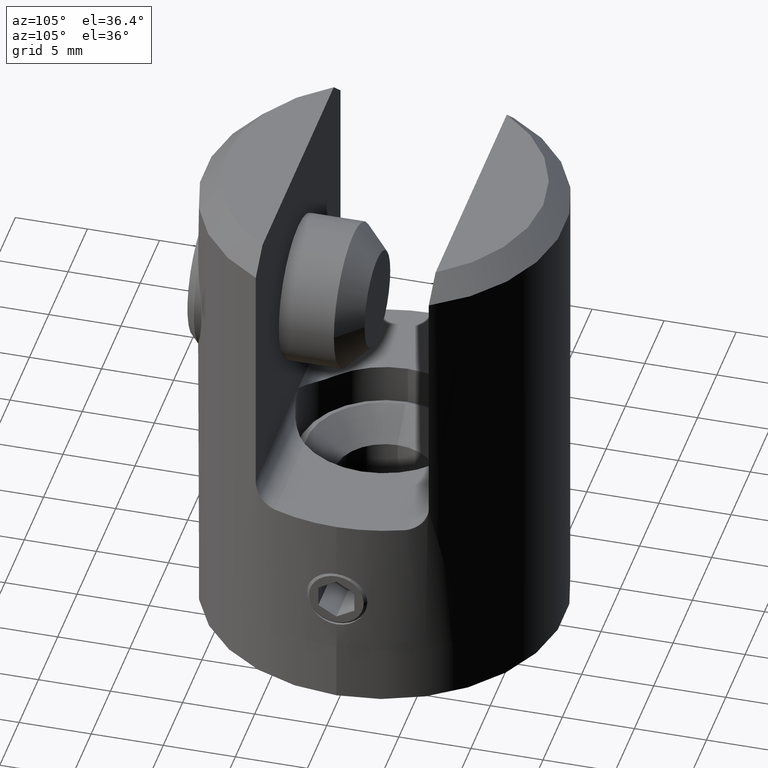
[diagram: clean part render]
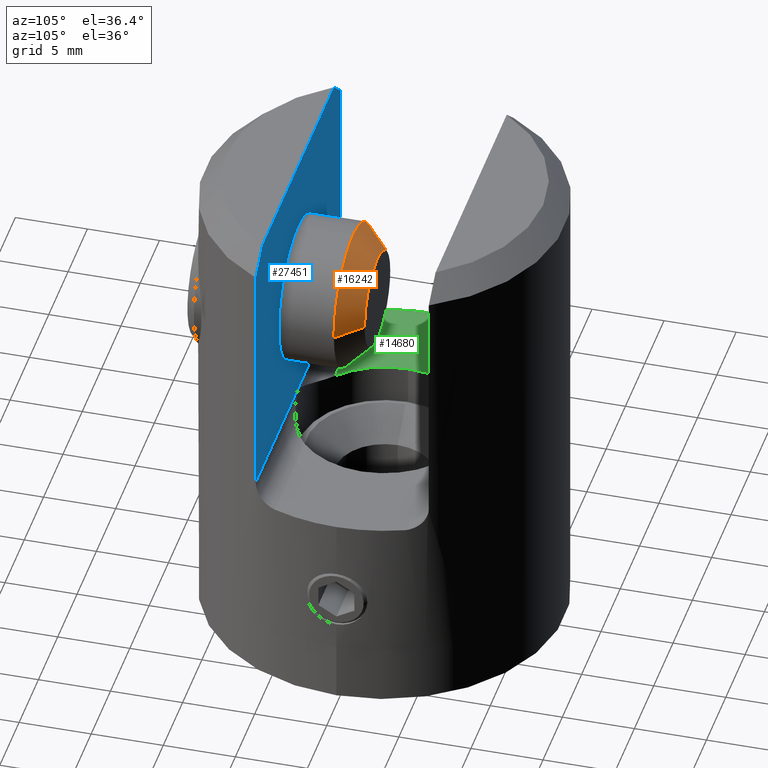
[diagram: same view with three faces highlighted in distinct colors, each labeled with its STEP entity id]
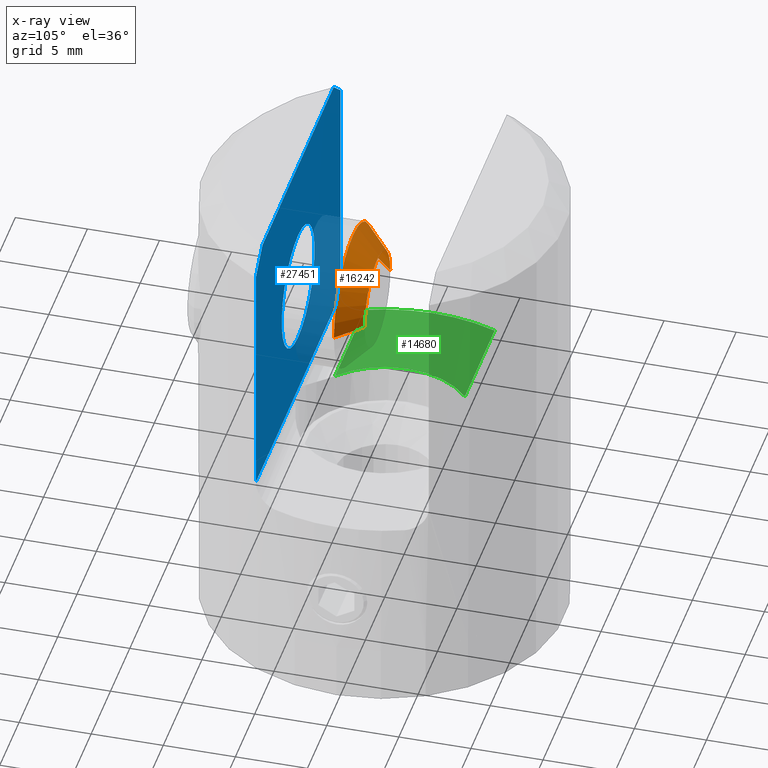
[diagram: x-ray of the same camera — body ghosted, the three highlighted faces saturated]
A machine part, auxiliary view with three faces highlighted in distinct colors.
The next image is the same camera in x-ray (body ghosted, the three faces saturated) — at least one of them is partly hidden behind the body in this view.
Their STEP definitions:

[orange] entity #16242 — the highlighted conical surface has half-angle 45 deg.
#152 = DIRECTION ( 'NONE',  ( -4.336808689942017736E-17, -1.000000000000000000, 0.000000000000000000 ) ) ;
#309 = CIRCLE ( 'NONE', #14652, 5.000000000000000000 ) ;
#1065 = CARTESIAN_POINT ( 'NONE',  ( -1.901200912721610053E-16, 5.136624182069386946E-33, 0.000000000000000000 ) ) ;
#1178 = VECTOR ( 'NONE', #8250, 999.9999999999998863 ) ;
#1306 = CARTESIAN_POINT ( 'NONE',  ( 1.679999999999979954, -4.538988261647271723E-17, 0.000000000000000000 ) ) ;
#1523 = CARTESIAN_POINT ( 'NONE',  ( 1.679999999999979954, -4.538988261647271723E-17, 0.000000000000000000 ) ) ;
#2212 = EDGE_CURVE ( 'NONE', #5041, #21777, #3324, .T. ) ;
#2689 = DIRECTION ( 'NONE',  ( -1.000000000000000000, 2.701778727171027341E-17, -0.000000000000000000 ) ) ;
#3324 = CIRCLE ( 'NONE', #21937, 3.319999999999999840 ) ;
#3868 = FACE_OUTER_BOUND ( 'NONE', #15500, .T. ) ;
#4082 = CARTESIAN_POINT ( 'NONE',  ( -2.798191450142390727E-16, -3.319999999999999840, 5.094530684452988908E-16 ) ) ;
#4226 = AXIS2_PLACEMENT_3D ( 'NONE', #1065, #20991, #18646 ) ;
#5041 = VERTEX_POINT ( 'NONE', #4082 ) ;
#5338 = ORIENTED_EDGE ( 'NONE', *, *, #31138, .F. ) ;
#6163 = CARTESIAN_POINT ( 'NONE',  ( -2.798191450142390727E-16, -3.319999999999999840, 4.065827373169212520E-16 ) ) ;
#6902 = ORIENTED_EDGE ( 'NONE', *, *, #12768, .T. ) ;
#7551 = ORIENTED_EDGE ( 'NONE', *, *, #22919, .T. ) ;
#8038 = CARTESIAN_POINT ( 'NONE',  ( -1.004210375300828885E-16, 3.319999999999999840, 0.000000000000000000 ) ) ;
#8055 = ORIENTED_EDGE ( 'NONE', *, *, #2212, .F. ) ;
#8250 = DIRECTION ( 'NONE',  ( 0.7071067811865434649, 0.7071067811865516806, 0.000000000000000000 ) ) ;
#9437 = VERTEX_POINT ( 'NONE', #20375 ) ;
#12768 = EDGE_CURVE ( 'NONE', #20542, #9437, #309, .T. ) ;
#12992 = ORIENTED_EDGE ( 'NONE', *, *, #17235, .T. ) ;
#13104 = LINE ( 'NONE', #6163, #32404 ) ;
#13435 = DIRECTION ( 'NONE',  ( 0.7071067811865434649, -0.7071067811865516806, 8.659560562354984627E-17 ) ) ;
#13801 = LINE ( 'NONE', #8038, #1178 ) ;
#14652 = AXIS2_PLACEMENT_3D ( 'NONE', #1523, #2689, #152 ) ;
#14927 = CONICAL_SURFACE ( 'NONE', #4226, 3.319999999999999840, 0.7853981633974541632 ) ;
#15500 = EDGE_LOOP ( 'NONE', ( #8055, #7551, #6902, #12992, #5338 ) ) ;
#15949 = CIRCLE ( 'NONE', #16686, 5.000000000000000000 ) ;
#16052 = VERTEX_POINT ( 'NONE', #27267 ) ;
#16163 = DIRECTION ( 'NONE',  ( -4.336808689942017736E-17, -1.000000000000000000, 0.000000000000000000 ) ) ;
#16242 = ADVANCED_FACE ( 'NONE', ( #3868 ), #14927, .T. ) ;
#16686 = AXIS2_PLACEMENT_3D ( 'NONE', #1306, #31255, #16163 ) ;
#16921 = DIRECTION ( 'NONE',  ( -1.000000000000000000, 2.701778727171027341E-17, -0.000000000000000000 ) ) ;
#17235 = EDGE_CURVE ( 'NONE', #9437, #16052, #15949, .T. ) ;
#17257 = CARTESIAN_POINT ( 'NONE',  ( 1.679999999999979954, -5.000000000000000000, 6.123233995736766282E-16 ) ) ;
#18646 = DIRECTION ( 'NONE',  ( 2.701778727171027341E-17, 1.000000000000000000, 0.000000000000000000 ) ) ;
#20375 = CARTESIAN_POINT ( 'NONE',  ( 1.679999999999979954, 0.000000000000000000, 5.000000000000000000 ) ) ;
#20542 = VERTEX_POINT ( 'NONE', #17257 ) ;
#20991 = DIRECTION ( 'NONE',  ( 1.000000000000000000, -2.701778727171027341E-17, 0.000000000000000000 ) ) ;
#21777 = VERTEX_POINT ( 'NONE', #26963 ) ;
#21937 = AXIS2_PLACEMENT_3D ( 'NONE', #32348, #16921, #21999 ) ;
#21999 = DIRECTION ( 'NONE',  ( -2.701778727171027033E-17, -1.000000000000000000, 0.000000000000000000 ) ) ;
#22919 = EDGE_CURVE ( 'NONE', #5041, #20542, #13104, .T. ) ;
#26963 = CARTESIAN_POINT ( 'NONE',  ( -1.004210375300828885E-16, 3.319999999999999840, 0.000000000000000000 ) ) ;
#27267 = CARTESIAN_POINT ( 'NONE',  ( 1.679999999999979954, 4.999999999999999112, 0.000000000000000000 ) ) ;
#31138 = EDGE_CURVE ( 'NONE', #21777, #16052, #13801, .T. ) ;
#31255 = DIRECTION ( 'NONE',  ( -1.000000000000000000, 2.701778727171027341E-17, -0.000000000000000000 ) ) ;
#32348 = CARTESIAN_POINT ( 'NONE',  ( -1.901200912721610053E-16, 5.136624182069386946E-33, 0.000000000000000000 ) ) ;
#32404 = VECTOR ( 'NONE', #13435, 999.9999999999998863 ) ;

[blue] entity #27451 — the highlighted planar face has unit normal (0, -1, 0).
#568 = CARTESIAN_POINT ( 'NONE',  ( -10.96585609973065623, -6.000000000000000000, 13.50000000000000711 ) ) ;
#772 = LINE ( 'NONE', #17949, #20864 ) ;
#1105 = CIRCLE ( 'NONE', #25052, 4.249999999999996447 ) ;
#1137 = EDGE_CURVE ( 'NONE', #13182, #12910, #3888, .T. ) ;
#1376 = ORIENTED_EDGE ( 'NONE', *, *, #10606, .T. ) ;
#1571 = EDGE_CURVE ( 'NONE', #2514, #17963, #15186, .T. ) ;
#1995 = PLANE ( 'NONE',  #27346 ) ;
#2320 = DIRECTION ( 'NONE',  ( 0.000000000000000000, -0.000000000000000000, -1.000000000000000000 ) ) ;
#2425 = ORIENTED_EDGE ( 'NONE', *, *, #1571, .T. ) ;
#2459 = DIRECTION ( 'NONE',  ( 0.000000000000000000, 0.000000000000000000, -1.000000000000000000 ) ) ;
#2514 = VERTEX_POINT ( 'NONE', #568 ) ;
#3624 = AXIS2_PLACEMENT_3D ( 'NONE', #29466, #27147, #19442 ) ;
#3795 = ORIENTED_EDGE ( 'NONE', *, *, #21785, .T. ) ;
#3888 = LINE ( 'NONE', #27723, #25567 ) ;
#4754 = CARTESIAN_POINT ( 'NONE',  ( -10.96585609973065623, -6.000000000000000000, 13.50000000000000711 ) ) ;
#4911 = ORIENTED_EDGE ( 'NONE', *, *, #28471, .T. ) ;
#5392 = CARTESIAN_POINT ( 'NONE',  ( 0.000000000000000000, -6.000000000000000000, -3.499999999999999556 ) ) ;
#5653 = VERTEX_POINT ( 'NONE', #5392 ) ;
#5962 = VERTEX_POINT ( 'NONE', #19789 ) ;
#6026 = CARTESIAN_POINT ( 'NONE',  ( 10.96585609973065800, -5.999999999999998224, -3.499999999999996003 ) ) ;
#6247 = CIRCLE ( 'NONE', #3624, 4.249999999999996447 ) ;
#6440 = DIRECTION ( 'NONE',  ( 1.000000000000000000, 0.000000000000000000, 0.000000000000000000 ) ) ;
#7294 = CARTESIAN_POINT ( 'NONE',  ( 0.000000000000000000, -6.000000000000000000, 0.7500000000000041078 ) ) ;
#7326 = CARTESIAN_POINT ( 'NONE',  ( -9.219544457292899509, -6.000000000000000000, 15.00000000000000000 ) ) ;
#7342 = CARTESIAN_POINT ( 'NONE',  ( 0.000000000000000000, -6.000000000000000000, 5.000000000000000888 ) ) ;
#8155 = EDGE_CURVE ( 'NONE', #17854, #12910, #8694, .T. ) ;
#8198 = CARTESIAN_POINT ( 'NONE',  ( 9.219544457292899509, -6.000000000000000000, 15.00000000000000000 ) ) ;
#8592 = CARTESIAN_POINT ( 'NONE',  ( 10.38914765861838596, -6.000000000000000000, 14.00592814213897874 ) ) ;
#8694 = B_SPLINE_CURVE_WITH_KNOTS ( 'NONE', 3,
 ( #26053, #15825, #8592, #31245 ),
 .UNSPECIFIED., .F., .F.,
 ( 4, 4 ),
 ( 0.04180594926930954885, 0.04412584257624783263 ),
 .UNSPECIFIED. ) ;
#9187 = CARTESIAN_POINT ( 'NONE',  ( -10.96585609973065623, -6.000000000000000000, -42.73084924772409465 ) ) ;
#9214 = VERTEX_POINT ( 'NONE', #14136 ) ;
#9972 = VECTOR ( 'NONE', #21796, 1000.000000000000000 ) ;
#10606 = EDGE_CURVE ( 'NONE', #17963, #17854, #13743, .T. ) ;
#10731 = EDGE_CURVE ( 'NONE', #17025, #5962, #6247, .T. ) ;
#12910 = VERTEX_POINT ( 'NONE', #26724 ) ;
#13182 = VERTEX_POINT ( 'NONE', #6026 ) ;
#13517 = LINE ( 'NONE', #19148, #9972 ) ;
#13743 = LINE ( 'NONE', #21732, #27874 ) ;
#13890 = DIRECTION ( 'NONE',  ( -0.000000000000000000, -0.000000000000000000, 1.000000000000000000 ) ) ;
#14136 = CARTESIAN_POINT ( 'NONE',  ( -10.96585609973065623, -6.000000000000000000, -3.499999999999996003 ) ) ;
#15186 = B_SPLINE_CURVE_WITH_KNOTS ( 'NONE', 3,
 ( #4754, #22391, #24813, #7326 ),
 .UNSPECIFIED., .F., .F.,
 ( 4, 4 ),
 ( 0.01809640099093061394, 0.02039683557023025395 ),
 .UNSPECIFIED. ) ;
#15825 = CARTESIAN_POINT ( 'NONE',  ( 9.807903379770447572, -6.000000000000000000, 14.50687261430666197 ) ) ;
#17025 = VERTEX_POINT ( 'NONE', #7294 ) ;
#17284 = FACE_BOUND ( 'NONE', #27252, .T. ) ;
#17854 = VERTEX_POINT ( 'NONE', #8198 ) ;
#17949 = CARTESIAN_POINT ( 'NONE',  ( -10.96585609973065623, -6.000000000000000000, -3.499999999999996003 ) ) ;
#17963 = VERTEX_POINT ( 'NONE', #18834 ) ;
#18834 = CARTESIAN_POINT ( 'NONE',  ( -9.219544457292899509, -6.000000000000000000, 15.00000000000000000 ) ) ;
#19148 = CARTESIAN_POINT ( 'NONE',  ( -10.96585609973065623, -6.000000000000000000, -3.499999999999996003 ) ) ;
#19200 = ORIENTED_EDGE ( 'NONE', *, *, #1137, .F. ) ;
#19243 = CARTESIAN_POINT ( 'NONE',  ( -10.96585609973065623, -6.000000000000000000, -42.73084924772409465 ) ) ;
#19442 = DIRECTION ( 'NONE',  ( 0.000000000000000000, 0.000000000000000000, -1.000000000000000000 ) ) ;
#19789 = CARTESIAN_POINT ( 'NONE',  ( 5.204748896376247741E-16, -6.000000000000000000, 9.249999999999998224 ) ) ;
#20864 = VECTOR ( 'NONE', #28177, 1000.000000000000000 ) ;
#21732 = CARTESIAN_POINT ( 'NONE',  ( -10.96585609973065623, -6.000000000000000000, 15.00000000000000000 ) ) ;
#21785 = EDGE_CURVE ( 'NONE', #13182, #5653, #13517, .T. ) ;
#21796 = DIRECTION ( 'NONE',  ( -1.000000000000000000, 0.000000000000000000, 0.000000000000000000 ) ) ;
#22257 = ORIENTED_EDGE ( 'NONE', *, *, #10731, .T. ) ;
#22391 = CARTESIAN_POINT ( 'NONE',  ( -10.38914799595922744, -6.000000000000000000, 14.00592784620048725 ) ) ;
#22812 = ORIENTED_EDGE ( 'NONE', *, *, #8155, .T. ) ;
#24373 = FACE_OUTER_BOUND ( 'NONE', #25241, .T. ) ;
#24683 = DIRECTION ( 'NONE',  ( 0.000000000000000000, -1.000000000000000000, 0.000000000000000000 ) ) ;
#24813 = CARTESIAN_POINT ( 'NONE',  ( -9.807566054437092617, -6.000000000000000000, 14.50715534029824738 ) ) ;
#25050 = DIRECTION ( 'NONE',  ( 0.000000000000000000, -1.000000000000000000, 0.000000000000000000 ) ) ;
#25052 = AXIS2_PLACEMENT_3D ( 'NONE', #7342, #25050, #2459 ) ;
#25241 = EDGE_LOOP ( 'NONE', ( #19200, #3795, #26435, #25248, #2425, #1376, #22812 ) ) ;
#25248 = ORIENTED_EDGE ( 'NONE', *, *, #32347, .T. ) ;
#25567 = VECTOR ( 'NONE', #27407, 1000.000000000000000 ) ;
#25962 = EDGE_CURVE ( 'NONE', #5653, #9214, #772, .T. ) ;
#26053 = CARTESIAN_POINT ( 'NONE',  ( 9.219544457292899509, -6.000000000000000000, 15.00000000000000000 ) ) ;
#26330 = VECTOR ( 'NONE', #13890, 1000.000000000000000 ) ;
#26435 = ORIENTED_EDGE ( 'NONE', *, *, #25962, .T. ) ;
#26724 = CARTESIAN_POINT ( 'NONE',  ( 10.96585609973065800, -5.999999999999998224, 13.50000000000000711 ) ) ;
#27132 = LINE ( 'NONE', #19243, #26330 ) ;
#27147 = DIRECTION ( 'NONE',  ( 0.000000000000000000, -1.000000000000000000, 0.000000000000000000 ) ) ;
#27252 = EDGE_LOOP ( 'NONE', ( #22257, #4911 ) ) ;
#27346 = AXIS2_PLACEMENT_3D ( 'NONE', #9187, #24683, #2320 ) ;
#27407 = DIRECTION ( 'NONE',  ( -0.000000000000000000, -0.000000000000000000, 1.000000000000000000 ) ) ;
#27451 = ADVANCED_FACE ( 'NONE', ( #17284, #24373 ), #1995, .F. ) ;
#27723 = CARTESIAN_POINT ( 'NONE',  ( 10.96585609973065800, -5.999999999999998224, -42.73084924772409465 ) ) ;
#27874 = VECTOR ( 'NONE', #6440, 1000.000000000000000 ) ;
#28177 = DIRECTION ( 'NONE',  ( -1.000000000000000000, 0.000000000000000000, 0.000000000000000000 ) ) ;
#28471 = EDGE_CURVE ( 'NONE', #5962, #17025, #1105, .T. ) ;
#29466 = CARTESIAN_POINT ( 'NONE',  ( 0.000000000000000000, -6.000000000000000000, 5.000000000000000888 ) ) ;
#31245 = CARTESIAN_POINT ( 'NONE',  ( 10.96585609973065800, -5.999999999999998224, 13.50000000000000711 ) ) ;
#32347 = EDGE_CURVE ( 'NONE', #9214, #2514, #27132, .T. ) ;

[green] entity #14680 — the highlighted planar face has unit normal (0, 0, 1).
#723 = DIRECTION ( 'NONE',  ( -0.000000000000000000, -0.000000000000000000, -1.000000000000000000 ) ) ;
#984 = CIRCLE ( 'NONE', #27595, 12.50000000000000000 ) ;
#1033 = VERTEX_POINT ( 'NONE', #20138 ) ;
#1592 = EDGE_CURVE ( 'NONE', #24830, #1033, #984, .T. ) ;
#1740 = LINE ( 'NONE', #16671, #14363 ) ;
#2085 = AXIS2_PLACEMENT_3D ( 'NONE', #20455, #28020, #18342 ) ;
#2769 = CARTESIAN_POINT ( 'NONE',  ( -3.968626966596886962, 4.500000000000000888, -4.999999999999999112 ) ) ;
#3089 = DIRECTION ( 'NONE',  ( -0.000000000000000000, -0.000000000000000000, -1.000000000000000000 ) ) ;
#4862 = AXIS2_PLACEMENT_3D ( 'NONE', #21242, #11349, #6375 ) ;
#4937 = AXIS2_PLACEMENT_3D ( 'NONE', #24091, #19133, #8821 ) ;
#6375 = DIRECTION ( 'NONE',  ( 1.000000000000000000, 0.000000000000000000, 0.000000000000000000 ) ) ;
#7055 = EDGE_CURVE ( 'NONE', #16808, #24830, #24542, .T. ) ;
#8238 = VECTOR ( 'NONE', #15626, 1000.000000000000000 ) ;
#8645 = ORIENTED_EDGE ( 'NONE', *, *, #7055, .F. ) ;
#8821 = DIRECTION ( 'NONE',  ( 1.000000000000000000, 0.000000000000000000, -0.000000000000000000 ) ) ;
#8868 = CARTESIAN_POINT ( 'NONE',  ( -6.000000000000000888, 0.000000000000000000, -4.999999999999999112 ) ) ;
#10218 = ORIENTED_EDGE ( 'NONE', *, *, #15840, .F. ) ;
#10564 = CARTESIAN_POINT ( 'NONE',  ( 0.000000000000000000, -4.500000000000000888, -4.999999999999999112 ) ) ;
#10736 = CARTESIAN_POINT ( 'NONE',  ( 0.000000000000000000, 0.000000000000000000, -4.999999999999997335 ) ) ;
#11349 = DIRECTION ( 'NONE',  ( 0.000000000000000000, 0.000000000000000000, 1.000000000000000000 ) ) ;
#12678 = ORIENTED_EDGE ( 'NONE', *, *, #18825, .T. ) ;
#13004 = CIRCLE ( 'NONE', #2085, 6.000000000000000888 ) ;
#13259 = CARTESIAN_POINT ( 'NONE',  ( 0.000000000000000000, 0.000000000000000000, -4.999999999999997335 ) ) ;
#14175 = AXIS2_PLACEMENT_3D ( 'NONE', #10736, #723, #15460 ) ;
#14363 = VECTOR ( 'NONE', #21862, 1000.000000000000000 ) ;
#14680 = ADVANCED_FACE ( 'NONE', ( #23859 ), #26716, .T. ) ;
#15460 = DIRECTION ( 'NONE',  ( 1.000000000000000000, 3.552713678800500929E-15, 0.000000000000000000 ) ) ;
#15626 = DIRECTION ( 'NONE',  ( 1.000000000000000000, -0.000000000000000000, -0.000000000000000000 ) ) ;
#15716 = EDGE_CURVE ( 'NONE', #16808, #26978, #24779, .T. ) ;
#15840 = EDGE_CURVE ( 'NONE', #16407, #28804, #20439, .T. ) ;
#16407 = VERTEX_POINT ( 'NONE', #2769 ) ;
#16671 = CARTESIAN_POINT ( 'NONE',  ( 0.000000000000000000, 4.500000000000000888, -4.999999999999999112 ) ) ;
#16808 = VERTEX_POINT ( 'NONE', #19050 ) ;
#18342 = DIRECTION ( 'NONE',  ( 1.000000000000000000, 0.000000000000000000, 0.000000000000000000 ) ) ;
#18825 = EDGE_CURVE ( 'NONE', #16407, #1033, #1740, .T. ) ;
#19050 = CARTESIAN_POINT ( 'NONE',  ( -11.66190378969060149, -4.500000000000000888, -4.999999999999997335 ) ) ;
#19133 = DIRECTION ( 'NONE',  ( 0.000000000000000000, 0.000000000000000000, 1.000000000000000000 ) ) ;
#19425 = CARTESIAN_POINT ( 'NONE',  ( -3.968626966596888739, -4.500000000000000888, -4.999999999999999112 ) ) ;
#20138 = CARTESIAN_POINT ( 'NONE',  ( -11.66190378969060149, 4.500000000000000888, -4.999999999999997335 ) ) ;
#20439 = CIRCLE ( 'NONE', #4862, 6.000000000000000888 ) ;
#20455 = CARTESIAN_POINT ( 'NONE',  ( 0.000000000000000000, 0.000000000000000000, -4.999999999999999112 ) ) ;
#21242 = CARTESIAN_POINT ( 'NONE',  ( 0.000000000000000000, 0.000000000000000000, -4.999999999999999112 ) ) ;
#21862 = DIRECTION ( 'NONE',  ( -1.000000000000000000, -0.000000000000000000, 0.000000000000000000 ) ) ;
#23859 = FACE_OUTER_BOUND ( 'NONE', #25062, .T. ) ;
#24073 = ORIENTED_EDGE ( 'NONE', *, *, #31110, .F. ) ;
#24091 = CARTESIAN_POINT ( 'NONE',  ( 0.000000000000000000, 0.000000000000000000, -4.999999999999999112 ) ) ;
#24214 = CARTESIAN_POINT ( 'NONE',  ( -12.50000000000000000, 0.000000000000000000, -4.999999999999997335 ) ) ;
#24542 = CIRCLE ( 'NONE', #14175, 12.50000000000000000 ) ;
#24779 = LINE ( 'NONE', #10564, #8238 ) ;
#24830 = VERTEX_POINT ( 'NONE', #24214 ) ;
#25062 = EDGE_LOOP ( 'NONE', ( #10218, #12678, #29659, #8645, #28815, #24073 ) ) ;
#26716 = PLANE ( 'NONE',  #4937 ) ;
#26978 = VERTEX_POINT ( 'NONE', #19425 ) ;
#27595 = AXIS2_PLACEMENT_3D ( 'NONE', #13259, #3089, #28072 ) ;
#28020 = DIRECTION ( 'NONE',  ( 0.000000000000000000, 0.000000000000000000, 1.000000000000000000 ) ) ;
#28072 = DIRECTION ( 'NONE',  ( 1.000000000000000000, 0.000000000000000000, 0.000000000000000000 ) ) ;
#28804 = VERTEX_POINT ( 'NONE', #8868 ) ;
#28815 = ORIENTED_EDGE ( 'NONE', *, *, #15716, .T. ) ;
#29659 = ORIENTED_EDGE ( 'NONE', *, *, #1592, .F. ) ;
#31110 = EDGE_CURVE ( 'NONE', #28804, #26978, #13004, .T. ) ;